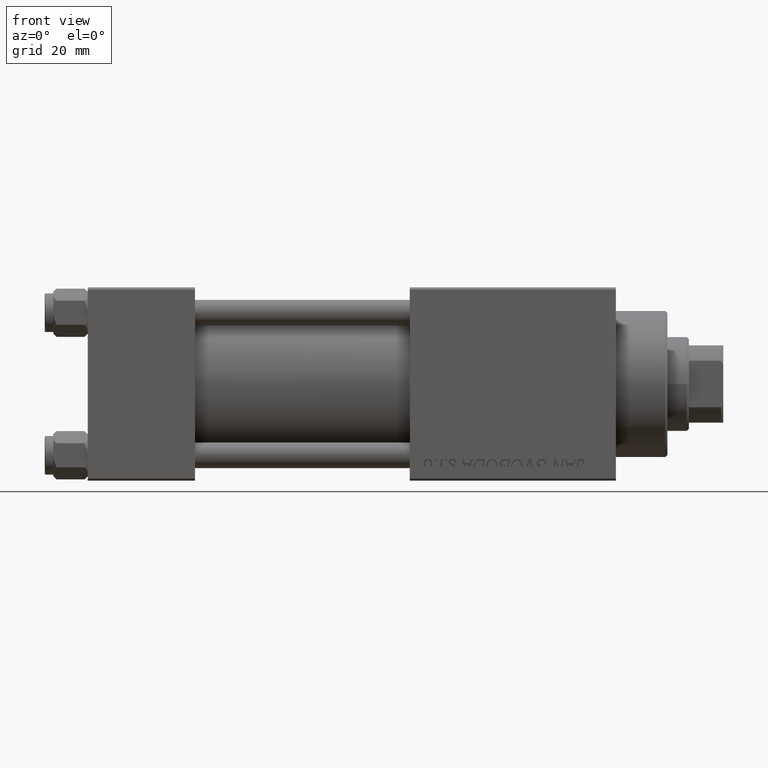
[diagram: clean part render]
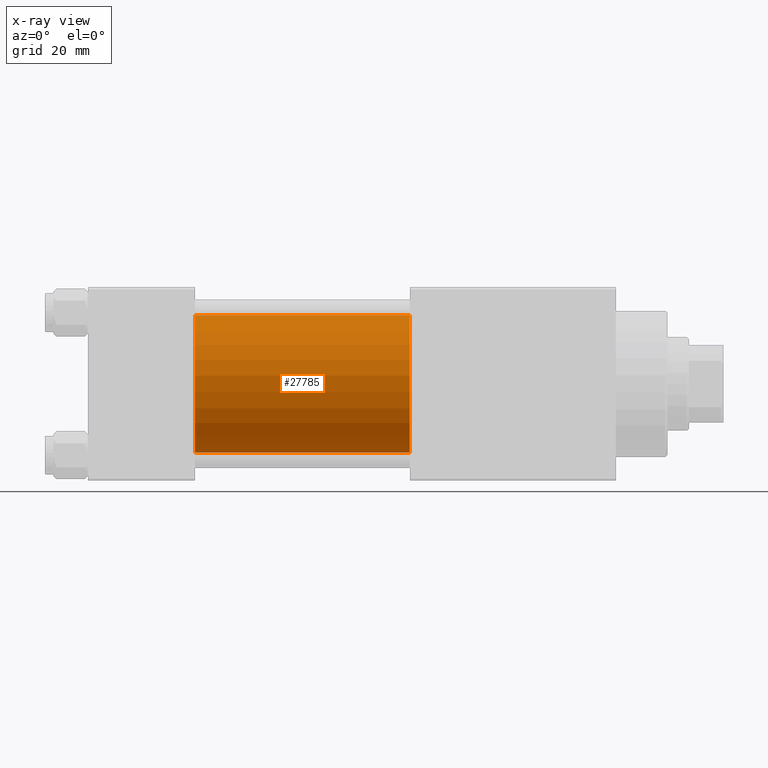
[diagram: x-ray — body ghosted, one internal face saturated and labeled with its STEP entity id]
A machine part, front view, then the same camera in x-ray: the body is ghosted and one INTERNAL B-rep face — a face not visible from any outside direction — is saturated and labeled: STEP entity #27785.
In plain terms, the highlighted cylindrical surface (partial cylindrical patch) has radius 16 mm, axis along (-1, -0, -0).
Its self-contained STEP definition (entity closure, byte-faithful):
#3254 = ORIENTED_EDGE ( 'NONE', *, *, #41717, .T. ) ;
#3826 = DIRECTION ( 'NONE',  ( 0.000000000000000000, 0.000000000000000000, -1.000000000000000000 ) ) ;
#5627 = ORIENTED_EDGE ( 'NONE', *, *, #20976, .T. ) ;
#5935 = VECTOR ( 'NONE', #22129, 1000.000000000000000 ) ;
#6632 = CARTESIAN_POINT ( 'NONE',  ( 75.00000000000001421, -6.426503353294456087E-16, -16.00000000000000000 ) ) ;
#6967 = CIRCLE ( 'NONE', #46638, 16.00000000000000000 ) ;
#10487 = CARTESIAN_POINT ( 'NONE',  ( 25.00000000000000000, -2.602085213965210642E-15, 0.000000000000000000 ) ) ;
#10731 = DIRECTION ( 'NONE',  ( 0.000000000000000000, 0.000000000000000000, -1.000000000000000000 ) ) ;
#11742 = VERTEX_POINT ( 'NONE', #20580 ) ;
#13448 = AXIS2_PLACEMENT_3D ( 'NONE', #22633, #23137, #3826 ) ;
#14092 = CARTESIAN_POINT ( 'NONE',  ( 75.00000000000001421, -2.602085213965210642E-15, 16.00000000000000000 ) ) ;
#14925 = VERTEX_POINT ( 'NONE', #21897 ) ;
#17135 = CARTESIAN_POINT ( 'NONE',  ( 75.00000000000001421, -2.602085213965210642E-15, 0.000000000000000000 ) ) ;
#18360 = DIRECTION ( 'NONE',  ( 1.000000000000000000, 0.000000000000000000, 0.000000000000000000 ) ) ;
#18379 = ORIENTED_EDGE ( 'NONE', *, *, #29772, .F. ) ;
#20580 = CARTESIAN_POINT ( 'NONE',  ( 75.00000000000001421, -2.602085213965210642E-15, 16.00000000000000000 ) ) ;
#20976 = EDGE_CURVE ( 'NONE', #11742, #26400, #41749, .T. ) ;
#21213 = CYLINDRICAL_SURFACE ( 'NONE', #38774, 16.00000000000000000 ) ;
#21228 = DIRECTION ( 'NONE',  ( -1.000000000000000000, -0.000000000000000000, -0.000000000000000000 ) ) ;
#21897 = CARTESIAN_POINT ( 'NONE',  ( 25.00000000000000000, -6.426503353294456087E-16, -16.00000000000000000 ) ) ;
#22129 = DIRECTION ( 'NONE',  ( -1.000000000000000000, -0.000000000000000000, -0.000000000000000000 ) ) ;
#22633 = CARTESIAN_POINT ( 'NONE',  ( 75.00000000000001421, -2.602085213965210642E-15, 0.000000000000000000 ) ) ;
#23137 = DIRECTION ( 'NONE',  ( 1.000000000000000000, 0.000000000000000000, 0.000000000000000000 ) ) ;
#24023 = DIRECTION ( 'NONE',  ( 0.000000000000000000, 0.000000000000000000, 1.000000000000000000 ) ) ;
#24786 = FACE_OUTER_BOUND ( 'NONE', #43177, .T. ) ;
#26400 = VERTEX_POINT ( 'NONE', #28078 ) ;
#27785 = ADVANCED_FACE ( 'NONE', ( #24786 ), #21213, .F. ) ;
#28078 = CARTESIAN_POINT ( 'NONE',  ( 75.00000000000001421, -6.426503353294456087E-16, -16.00000000000000000 ) ) ;
#29330 = LINE ( 'NONE', #14092, #35627 ) ;
#29772 = EDGE_CURVE ( 'NONE', #11742, #30285, #29330, .T. ) ;
#30285 = VERTEX_POINT ( 'NONE', #34306 ) ;
#30524 = ORIENTED_EDGE ( 'NONE', *, *, #48507, .F. ) ;
#34306 = CARTESIAN_POINT ( 'NONE',  ( 25.00000000000000000, -2.602085213965210642E-15, 16.00000000000000000 ) ) ;
#35627 = VECTOR ( 'NONE', #21228, 1000.000000000000000 ) ;
#36658 = DIRECTION ( 'NONE',  ( -1.000000000000000000, -0.000000000000000000, -0.000000000000000000 ) ) ;
#38774 = AXIS2_PLACEMENT_3D ( 'NONE', #17135, #36658, #24023 ) ;
#41354 = LINE ( 'NONE', #6632, #5935 ) ;
#41717 = EDGE_CURVE ( 'NONE', #26400, #14925, #41354, .T. ) ;
#41749 = CIRCLE ( 'NONE', #13448, 16.00000000000000000 ) ;
#43177 = EDGE_LOOP ( 'NONE', ( #5627, #3254, #30524, #18379 ) ) ;
#46638 = AXIS2_PLACEMENT_3D ( 'NONE', #10487, #18360, #10731 ) ;
#48507 = EDGE_CURVE ( 'NONE', #30285, #14925, #6967, .T. ) ;